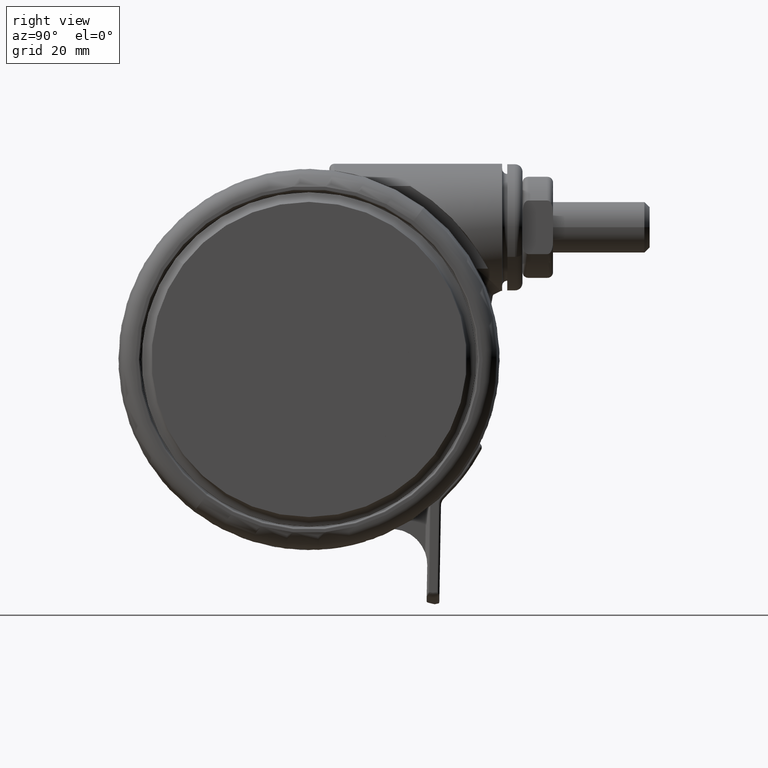
[diagram: clean part render]
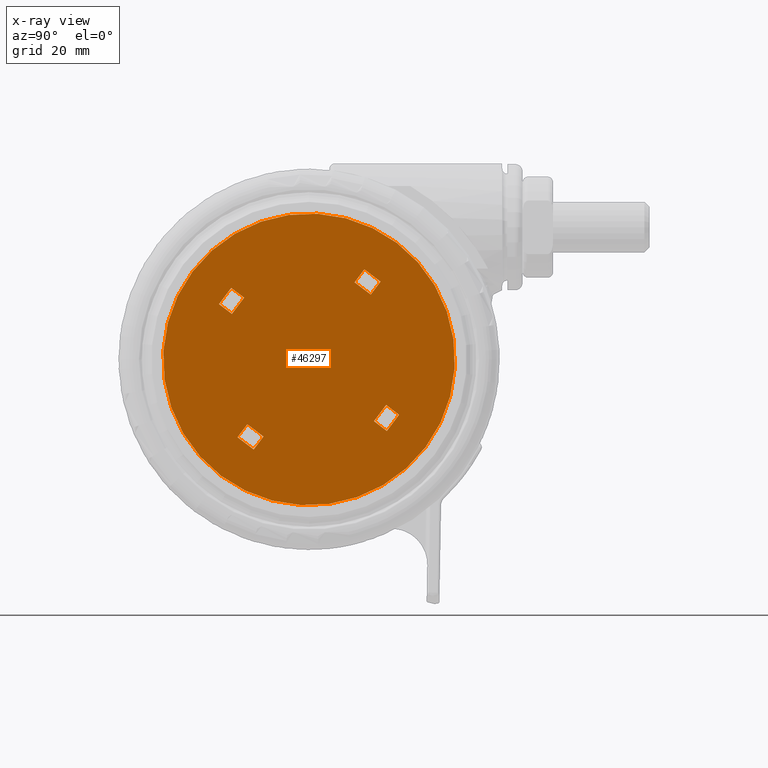
[diagram: x-ray — body ghosted, one internal face saturated and labeled with its STEP entity id]
A machine part, right view, then the same camera in x-ray: the body is ghosted and one INTERNAL B-rep face — a face not visible from any outside direction — is saturated and labeled: STEP entity #46297.
In plain terms, the highlighted planar face has unit normal (1, 0, 0).
Its self-contained STEP definition (entity closure, byte-faithful):
#141 = CARTESIAN_POINT ( 'NONE',  ( -28.69999999999999900, 1.948347684689195300E-015, -1.500000000000001300 ) ) ;
#997 = CARTESIAN_POINT ( 'NONE',  ( -19.70000000000000300, -2.000000000000066600, -1.500000000000001300 ) ) ;
#1088 = VECTOR ( 'NONE', #2475, 1000.000000000000000 ) ;
#1325 = DIRECTION ( 'NONE',  ( 1.000000000000000000, 3.185591765912558500E-015, 0.0000000000000000000 ) ) ;
#1722 = CARTESIAN_POINT ( 'NONE',  ( 1.999999999999999100, 20.70000000000000300, -1.500000000000001300 ) ) ;
#2260 = VERTEX_POINT ( 'NONE', #19279 ) ;
#2475 = DIRECTION ( 'NONE',  ( 1.000000000000000000, 1.016855444359881700E-014, 0.0000000000000000000 ) ) ;
#2965 = AXIS2_PLACEMENT_3D ( 'NONE', #29253, #69023, #34962 ) ;
#3087 = DIRECTION ( 'NONE',  ( 1.000000000000000000, 5.551115123125781500E-017, -0.0000000000000000000 ) ) ;
#3272 = CARTESIAN_POINT ( 'NONE',  ( 2.000000000000001800, -19.70000000000000300, -1.500000000000001300 ) ) ;
#3591 = LINE ( 'NONE', #58099, #30377 ) ;
#5167 = DIRECTION ( 'NONE',  ( -3.058895729305772500E-016, -1.000000000000000000, -0.0000000000000000000 ) ) ;
#5237 = EDGE_CURVE ( 'NONE', #35383, #10460, #14354, .T. ) ;
#5441 = DIRECTION ( 'NONE',  ( -1.000000000000000000, -1.016855444359881700E-014, -0.0000000000000000000 ) ) ;
#5455 = EDGE_CURVE ( 'NONE', #56408, #32824, #3591, .T. ) ;
#5637 = CARTESIAN_POINT ( 'NONE',  ( 1.999999999999999600, 17.50000000000000400, -1.500000000000001300 ) ) ;
#5687 = ORIENTED_EDGE ( 'NONE', *, *, #44378, .T. ) ;
#7411 = EDGE_CURVE ( 'NONE', #63386, #49270, #73864, .T. ) ;
#7460 = VERTEX_POINT ( 'NONE', #62664 ) ;
#9301 = ORIENTED_EDGE ( 'NONE', *, *, #44416, .F. ) ;
#10378 = CARTESIAN_POINT ( 'NONE',  ( -20.70000000000000300, 1.999999999999929400, -1.500000000000001300 ) ) ;
#10460 = VERTEX_POINT ( 'NONE', #50248 ) ;
#10645 = CARTESIAN_POINT ( 'NONE',  ( -20.70000000000000300, -2.000000000000071500, -1.500000000000001300 ) ) ;
#11430 = ORIENTED_EDGE ( 'NONE', *, *, #7411, .F. ) ;
#11435 = LINE ( 'NONE', #59537, #24796 ) ;
#11913 = CARTESIAN_POINT ( 'NONE',  ( -1.999999999999999100, -20.70000000000000300, -1.500000000000001300 ) ) ;
#12364 = CARTESIAN_POINT ( 'NONE',  ( 17.50000000000000400, -1.999999999999819700, -1.500000000000001300 ) ) ;
#12462 = VERTEX_POINT ( 'NONE', #141 ) ;
#12499 = DIRECTION ( 'NONE',  ( -1.000000000000000000, -3.185591765912558500E-015, -0.0000000000000000000 ) ) ;
#12622 = VECTOR ( 'NONE', #59987, 1000.000000000000000 ) ;
#13552 = VERTEX_POINT ( 'NONE', #63194 ) ;
#14354 = LINE ( 'NONE', #56187, #27755 ) ;
#14596 = CARTESIAN_POINT ( 'NONE',  ( 2.000000000000001800, -20.70000000000000300, -1.500000000000001300 ) ) ;
#15689 = VECTOR ( 'NONE', #33075, 1000.000000000000000 ) ;
#16206 = ORIENTED_EDGE ( 'NONE', *, *, #46594, .F. ) ;
#16707 = CARTESIAN_POINT ( 'NONE',  ( -17.50000000000000400, -2.000000000000061300, -1.500000000000001300 ) ) ;
#17306 = PLANE ( 'NONE',  #32151 ) ;
#17659 = VERTEX_POINT ( 'NONE', #30661 ) ;
#17809 = ORIENTED_EDGE ( 'NONE', *, *, #50500, .T. ) ;
#19279 = CARTESIAN_POINT ( 'NONE',  ( -20.70000000000000300, -2.000000000000071500, -1.500000000000001300 ) ) ;
#19693 = LINE ( 'NONE', #12364, #61527 ) ;
#21282 = VECTOR ( 'NONE', #12499, 1000.000000000000000 ) ;
#22239 = EDGE_CURVE ( 'NONE', #17659, #13552, #25348, .T. ) ;
#23005 = LINE ( 'NONE', #14596, #36315 ) ;
#24655 = AXIS2_PLACEMENT_3D ( 'NONE', #67706, #33613, #73440 ) ;
#24667 = FACE_BOUND ( 'NONE', #28325, .T. ) ;
#24796 = VECTOR ( 'NONE', #31493, 1000.000000000000000 ) ;
#25348 = LINE ( 'NONE', #67928, #67202 ) ;
#26669 = VECTOR ( 'NONE', #5167, 1000.000000000000000 ) ;
#26700 = EDGE_CURVE ( 'NONE', #63386, #10460, #44212, .T. ) ;
#27103 = CARTESIAN_POINT ( 'NONE',  ( -2.000000000000001300, 17.50000000000000400, -1.500000000000001300 ) ) ;
#27717 = CARTESIAN_POINT ( 'NONE',  ( -2.000000000000001800, 20.70000000000000300, -1.500000000000001300 ) ) ;
#27755 = VECTOR ( 'NONE', #44959, 1000.000000000000000 ) ;
#28325 = EDGE_LOOP ( 'NONE', ( #11430, #38213, #50881, #64931 ) ) ;
#28452 = LINE ( 'NONE', #67469, #64898 ) ;
#29102 = VECTOR ( 'NONE', #44841, 1000.000000000000000 ) ;
#29253 = CARTESIAN_POINT ( 'NONE',  ( 0.0000000000000000000, 0.0000000000000000000, -1.500000000000001300 ) ) ;
#30377 = VECTOR ( 'NONE', #1325, 1000.000000000000000 ) ;
#30661 = CARTESIAN_POINT ( 'NONE',  ( 20.70000000000000300, -1.999999999999784200, -1.500000000000001300 ) ) ;
#31493 = DIRECTION ( 'NONE',  ( -1.052995516776065900E-014, 1.000000000000000000, -0.0000000000000000000 ) ) ;
#32151 = AXIS2_PLACEMENT_3D ( 'NONE', #56849, #68525, #34462 ) ;
#32272 = EDGE_CURVE ( 'NONE', #12462, #59857, #52521, .T. ) ;
#32591 = VERTEX_POINT ( 'NONE', #32930 ) ;
#32824 = VERTEX_POINT ( 'NONE', #56443 ) ;
#32930 = CARTESIAN_POINT ( 'NONE',  ( 2.000000000000001300, -17.50000000000000400, -1.500000000000001300 ) ) ;
#33075 = DIRECTION ( 'NONE',  ( 3.546992490074393200E-015, -1.000000000000000000, -0.0000000000000000000 ) ) ;
#33221 = LINE ( 'NONE', #47834, #1088 ) ;
#33613 = DIRECTION ( 'NONE',  ( -0.0000000000000000000, -0.0000000000000000000, -1.000000000000000000 ) ) ;
#34462 = DIRECTION ( 'NONE',  ( 1.000000000000000000, 5.551115123125781500E-017, 0.0000000000000000000 ) ) ;
#34951 = ORIENTED_EDGE ( 'NONE', *, *, #58891, .T. ) ;
#34962 = DIRECTION ( 'NONE',  ( 1.000000000000000000, 5.551115123125781500E-017, 0.0000000000000000000 ) ) ;
#35383 = VERTEX_POINT ( 'NONE', #27103 ) ;
#36315 = VECTOR ( 'NONE', #3087, 1000.000000000000000 ) ;
#36387 = LINE ( 'NONE', #997, #21282 ) ;
#36721 = CARTESIAN_POINT ( 'NONE',  ( 2.000000000000001800, -20.70000000000000300, -1.500000000000001300 ) ) ;
#37956 = VERTEX_POINT ( 'NONE', #37997 ) ;
#37997 = CARTESIAN_POINT ( 'NONE',  ( 17.50000000000000400, 2.000000000000181200, -1.500000000000001300 ) ) ;
#38023 = FACE_BOUND ( 'NONE', #61267, .T. ) ;
#38143 = VECTOR ( 'NONE', #71529, 1000.000000000000000 ) ;
#38213 = ORIENTED_EDGE ( 'NONE', *, *, #26700, .T. ) ;
#38551 = ORIENTED_EDGE ( 'NONE', *, *, #32272, .T. ) ;
#38719 = EDGE_CURVE ( 'NONE', #65308, #2260, #36387, .T. ) ;
#39035 = CARTESIAN_POINT ( 'NONE',  ( -1.999999999999999600, -17.50000000000000400, -1.500000000000001300 ) ) ;
#40125 = CARTESIAN_POINT ( 'NONE',  ( 28.70000000000000600, 1.593170040337099600E-015, -1.500000000000001300 ) ) ;
#40733 = DIRECTION ( 'NONE',  ( 1.052995516776065900E-014, -1.000000000000000000, -0.0000000000000000000 ) ) ;
#42886 = LINE ( 'NONE', #54300, #12622 ) ;
#44212 = LINE ( 'NONE', #27717, #29102 ) ;
#44378 = EDGE_CURVE ( 'NONE', #17659, #7460, #11435, .T. ) ;
#44416 = EDGE_CURVE ( 'NONE', #32591, #50821, #68427, .T. ) ;
#44755 = DIRECTION ( 'NONE',  ( -1.000000000000000000, -5.551115123125781500E-017, -0.0000000000000000000 ) ) ;
#44798 = ORIENTED_EDGE ( 'NONE', *, *, #66301, .T. ) ;
#44841 = DIRECTION ( 'NONE',  ( -1.000000000000000000, -5.551115123125781500E-017, -0.0000000000000000000 ) ) ;
#44959 = DIRECTION ( 'NONE',  ( 3.058895729305772500E-016, 1.000000000000000000, 0.0000000000000000000 ) ) ;
#46297 = ADVANCED_FACE ( 'NONE', ( #71876, #68303, #24667, #38023, #53145 ), #17306, .F. ) ;
#46594 = EDGE_CURVE ( 'NONE', #47390, #67835, #67382, .T. ) ;
#47390 = VERTEX_POINT ( 'NONE', #11913 ) ;
#47741 = LINE ( 'NONE', #10645, #15689 ) ;
#47834 = CARTESIAN_POINT ( 'NONE',  ( 19.70000000000000300, 2.000000000000206900, -1.500000000000001300 ) ) ;
#49270 = VERTEX_POINT ( 'NONE', #5637 ) ;
#50248 = CARTESIAN_POINT ( 'NONE',  ( -2.000000000000001800, 20.70000000000000300, -1.500000000000001300 ) ) ;
#50326 = DIRECTION ( 'NONE',  ( -3.546992490074393200E-015, 1.000000000000000000, -0.0000000000000000000 ) ) ;
#50487 = VECTOR ( 'NONE', #71224, 1000.000000000000000 ) ;
#50500 = EDGE_CURVE ( 'NONE', #32591, #67835, #60796, .T. ) ;
#50821 = VERTEX_POINT ( 'NONE', #36721 ) ;
#50881 = ORIENTED_EDGE ( 'NONE', *, *, #5237, .F. ) ;
#51368 = EDGE_CURVE ( 'NONE', #35383, #49270, #42886, .T. ) ;
#51435 = CIRCLE ( 'NONE', #24655, 28.70000000000000600 ) ;
#51724 = CARTESIAN_POINT ( 'NONE',  ( -1.999999999999999600, -17.50000000000000400, -1.500000000000001300 ) ) ;
#52521 = CIRCLE ( 'NONE', #2965, 28.70000000000000600 ) ;
#52822 = ORIENTED_EDGE ( 'NONE', *, *, #22239, .F. ) ;
#53145 = FACE_BOUND ( 'NONE', #53738, .T. ) ;
#53738 = EDGE_LOOP ( 'NONE', ( #66513, #34951, #52822, #5687 ) ) ;
#54032 = CARTESIAN_POINT ( 'NONE',  ( -1.999999999999999100, -19.70000000000000300, -1.500000000000001300 ) ) ;
#54300 = CARTESIAN_POINT ( 'NONE',  ( 1.999999999999999600, 17.50000000000000400, -1.500000000000001300 ) ) ;
#56187 = CARTESIAN_POINT ( 'NONE',  ( -2.000000000000001800, 19.70000000000000300, -1.500000000000001300 ) ) ;
#56408 = VERTEX_POINT ( 'NONE', #10378 ) ;
#56443 = CARTESIAN_POINT ( 'NONE',  ( -17.50000000000000400, 1.999999999999939800, -1.500000000000001300 ) ) ;
#56849 = CARTESIAN_POINT ( 'NONE',  ( 0.0000000000000000000, 0.0000000000000000000, -1.500000000000001300 ) ) ;
#58099 = CARTESIAN_POINT ( 'NONE',  ( -19.70000000000000300, 1.999999999999934100, -1.500000000000001300 ) ) ;
#58891 = EDGE_CURVE ( 'NONE', #37956, #13552, #19693, .T. ) ;
#58978 = VECTOR ( 'NONE', #44755, 1000.000000000000000 ) ;
#59537 = CARTESIAN_POINT ( 'NONE',  ( 20.70000000000000300, 2.000000000000216700, -1.500000000000001300 ) ) ;
#59857 = VERTEX_POINT ( 'NONE', #40125 ) ;
#59966 = ORIENTED_EDGE ( 'NONE', *, *, #61328, .T. ) ;
#59987 = DIRECTION ( 'NONE',  ( 1.000000000000000000, 5.551115123125781500E-017, -0.0000000000000000000 ) ) ;
#60718 = ORIENTED_EDGE ( 'NONE', *, *, #5455, .F. ) ;
#60789 = EDGE_CURVE ( 'NONE', #47390, #50821, #23005, .T. ) ;
#60796 = LINE ( 'NONE', #39035, #58978 ) ;
#61267 = EDGE_LOOP ( 'NONE', ( #62672, #63148, #60718, #44798 ) ) ;
#61328 = EDGE_CURVE ( 'NONE', #59857, #12462, #51435, .T. ) ;
#61527 = VECTOR ( 'NONE', #40733, 1000.000000000000000 ) ;
#62171 = EDGE_LOOP ( 'NONE', ( #59966, #38551 ) ) ;
#62181 = CARTESIAN_POINT ( 'NONE',  ( 1.999999999999999100, 19.70000000000000300, -1.500000000000001300 ) ) ;
#62664 = CARTESIAN_POINT ( 'NONE',  ( 20.70000000000000300, 2.000000000000216700, -1.500000000000001300 ) ) ;
#62672 = ORIENTED_EDGE ( 'NONE', *, *, #38719, .F. ) ;
#63148 = ORIENTED_EDGE ( 'NONE', *, *, #72754, .T. ) ;
#63194 = CARTESIAN_POINT ( 'NONE',  ( 17.50000000000000400, -1.999999999999819700, -1.500000000000001300 ) ) ;
#63386 = VERTEX_POINT ( 'NONE', #1722 ) ;
#64898 = VECTOR ( 'NONE', #50326, 1000.000000000000000 ) ;
#64931 = ORIENTED_EDGE ( 'NONE', *, *, #51368, .T. ) ;
#65308 = VERTEX_POINT ( 'NONE', #16707 ) ;
#65468 = EDGE_LOOP ( 'NONE', ( #16206, #68051, #9301, #17809 ) ) ;
#66301 = EDGE_CURVE ( 'NONE', #56408, #2260, #47741, .T. ) ;
#66513 = ORIENTED_EDGE ( 'NONE', *, *, #69532, .F. ) ;
#67202 = VECTOR ( 'NONE', #5441, 1000.000000000000000 ) ;
#67382 = LINE ( 'NONE', #54032, #50487 ) ;
#67469 = CARTESIAN_POINT ( 'NONE',  ( -17.50000000000000400, 1.999999999999939800, -1.500000000000001300 ) ) ;
#67706 = CARTESIAN_POINT ( 'NONE',  ( 0.0000000000000000000, 0.0000000000000000000, -1.500000000000001300 ) ) ;
#67835 = VERTEX_POINT ( 'NONE', #51724 ) ;
#67928 = CARTESIAN_POINT ( 'NONE',  ( 19.70000000000000300, -1.999999999999793900, -1.500000000000001300 ) ) ;
#68051 = ORIENTED_EDGE ( 'NONE', *, *, #60789, .T. ) ;
#68303 = FACE_BOUND ( 'NONE', #65468, .T. ) ;
#68427 = LINE ( 'NONE', #3272, #38143 ) ;
#68525 = DIRECTION ( 'NONE',  ( 0.0000000000000000000, -0.0000000000000000000, 1.000000000000000000 ) ) ;
#69023 = DIRECTION ( 'NONE',  ( -0.0000000000000000000, -0.0000000000000000000, -1.000000000000000000 ) ) ;
#69532 = EDGE_CURVE ( 'NONE', #37956, #7460, #33221, .T. ) ;
#71224 = DIRECTION ( 'NONE',  ( 3.058895729305772500E-016, 1.000000000000000000, 0.0000000000000000000 ) ) ;
#71529 = DIRECTION ( 'NONE',  ( -3.058895729305772500E-016, -1.000000000000000000, -0.0000000000000000000 ) ) ;
#71876 = FACE_OUTER_BOUND ( 'NONE', #62171, .T. ) ;
#72754 = EDGE_CURVE ( 'NONE', #65308, #32824, #28452, .T. ) ;
#73440 = DIRECTION ( 'NONE',  ( 1.000000000000000000, 5.551115123125781500E-017, 0.0000000000000000000 ) ) ;
#73864 = LINE ( 'NONE', #62181, #26669 ) ;